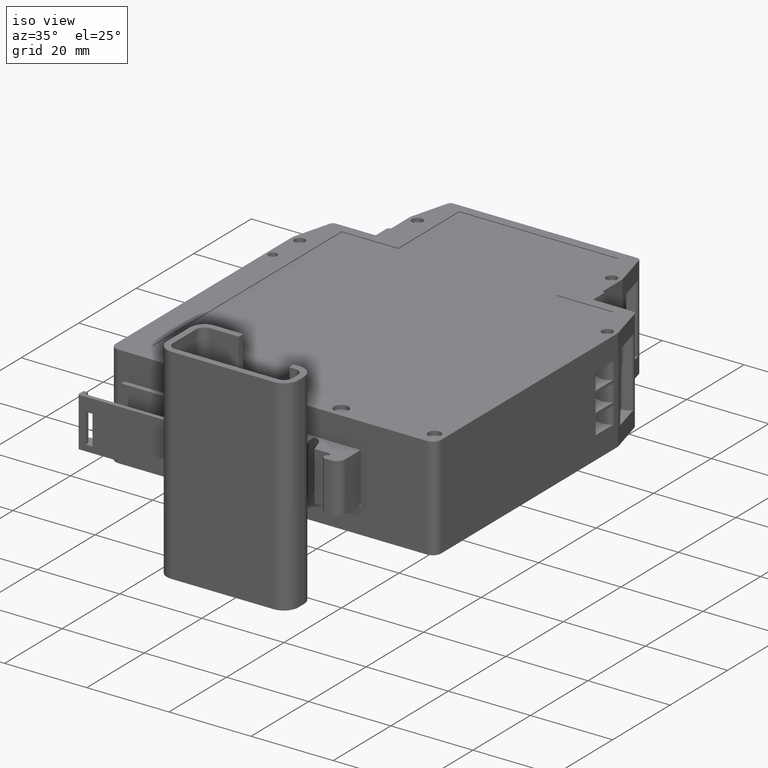
[diagram: clean part render]
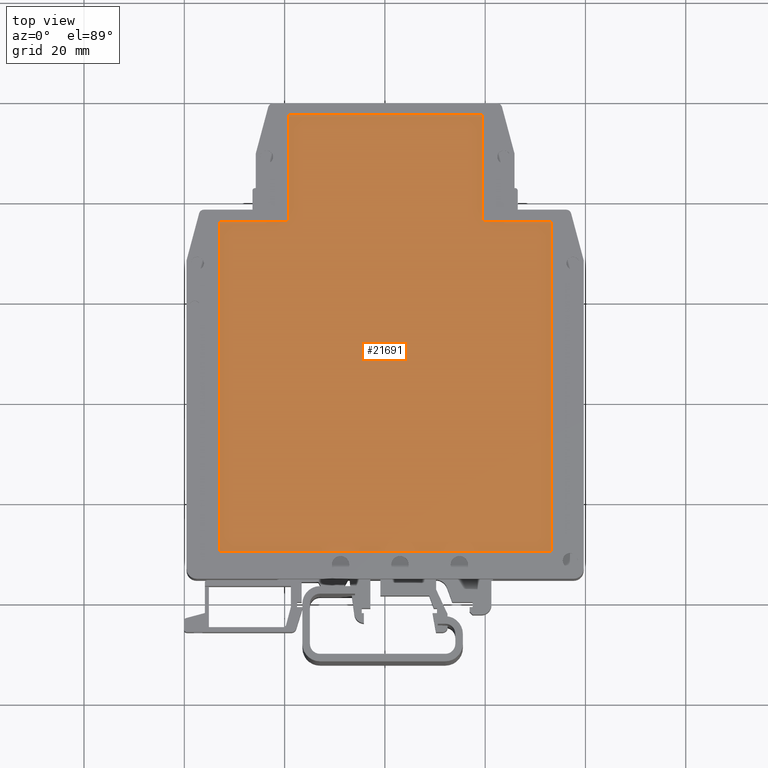
[diagram: tour spotlight — one face highlighted and labeled with its STEP entity id]
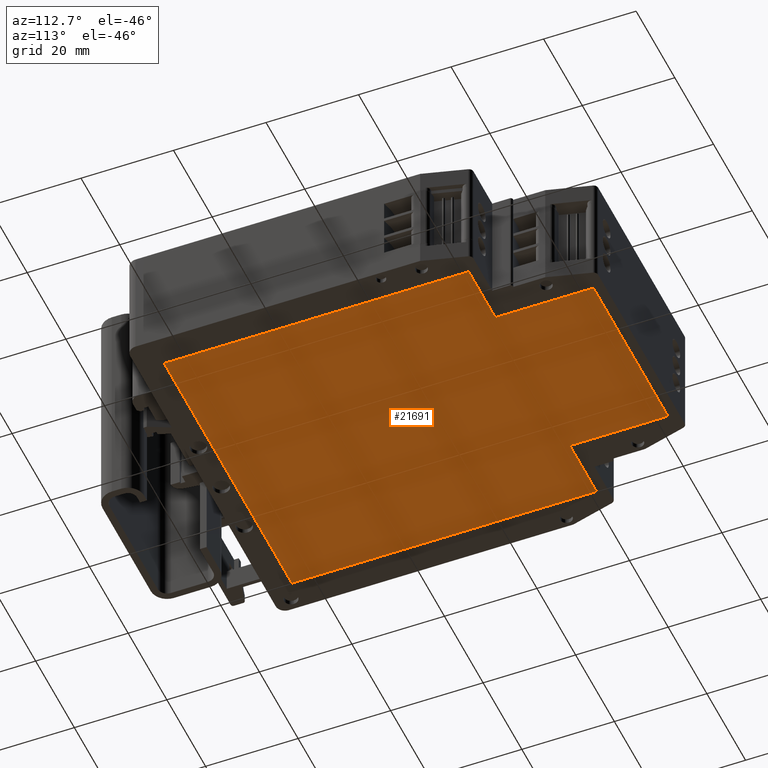
[diagram: tour spotlight — one face highlighted and labeled with its STEP entity id]
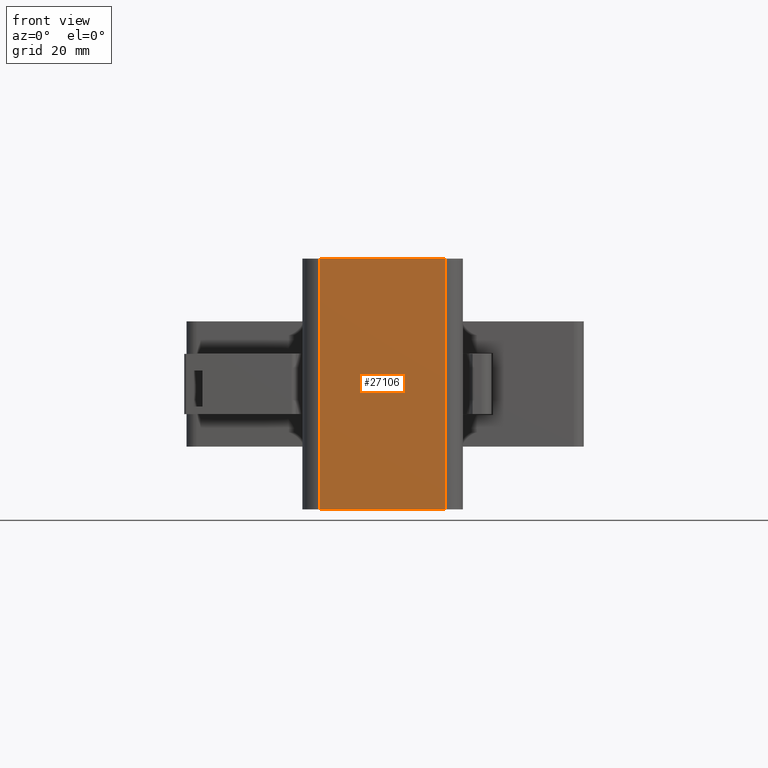
[diagram: tour spotlight — one face highlighted and labeled with its STEP entity id]
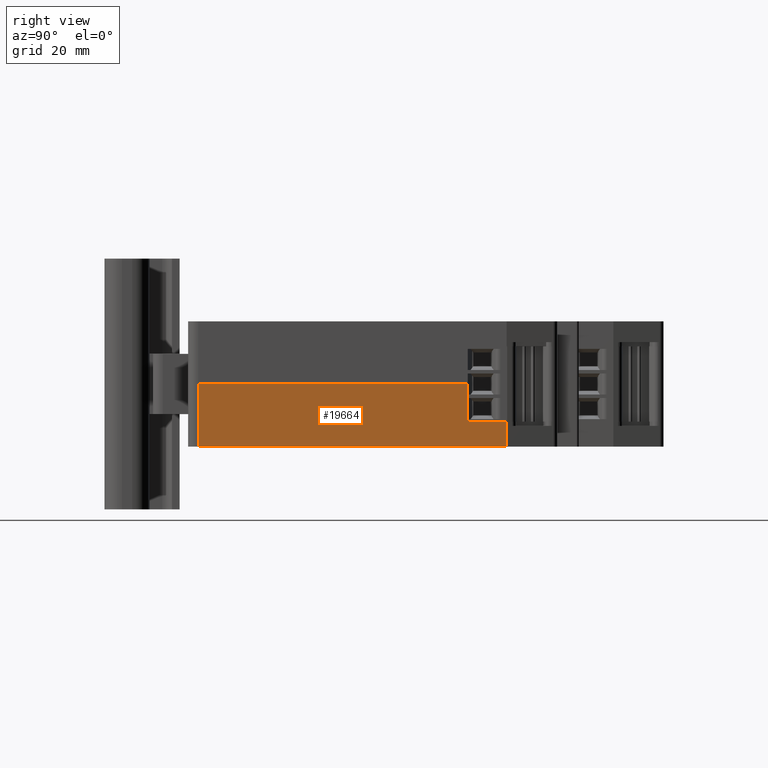
[diagram: tour spotlight — one face highlighted and labeled with its STEP entity id]
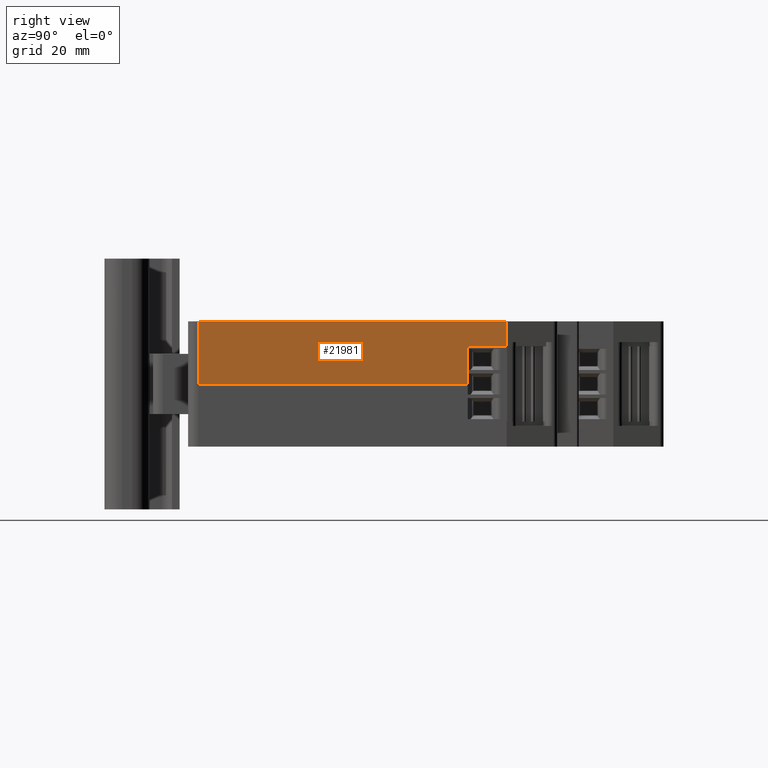
[diagram: tour spotlight — one face highlighted and labeled with its STEP entity id]
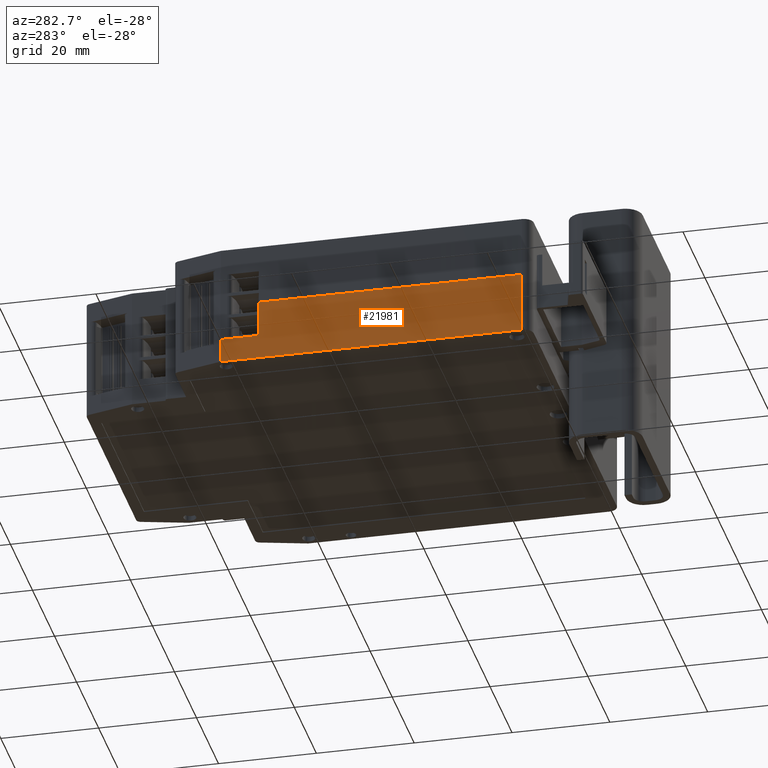
[diagram: tour spotlight — one face highlighted and labeled with its STEP entity id]
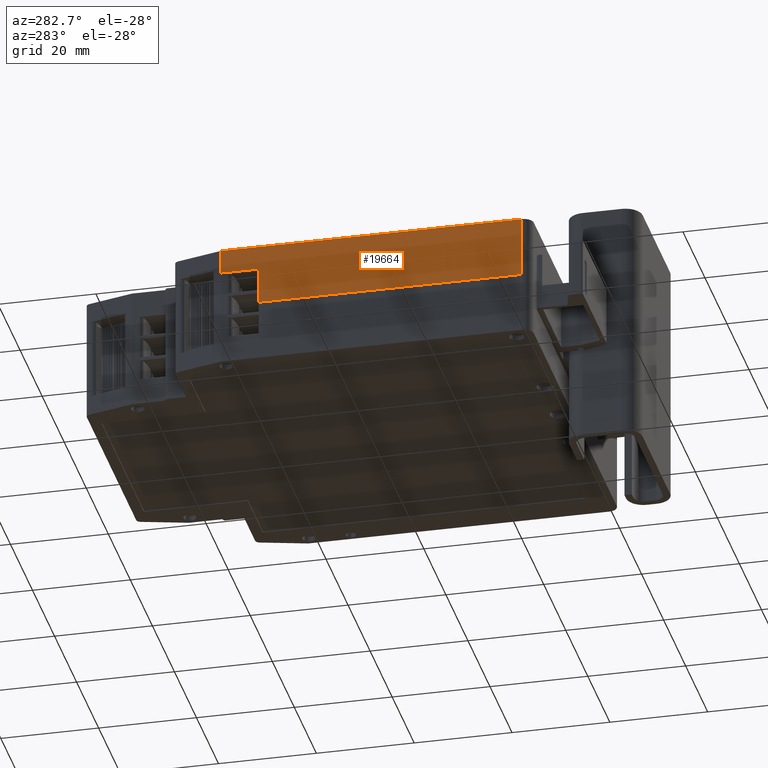
[diagram: tour spotlight — one face highlighted and labeled with its STEP entity id]
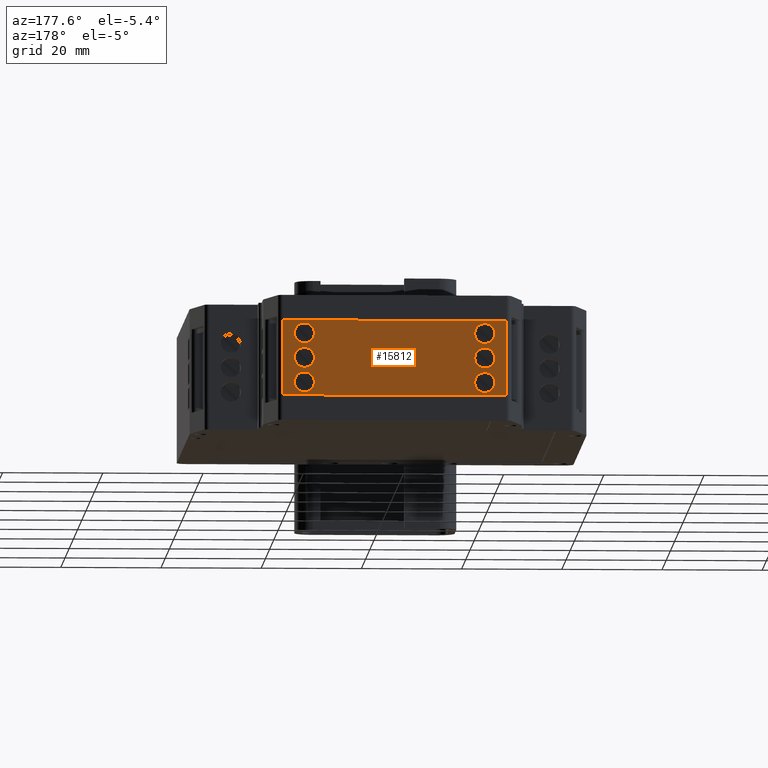
[diagram: tour spotlight — one face highlighted and labeled with its STEP entity id]
A machine part: a face-by-face anatomy tour. The part has 1025 B-rep faces; the first image is the clean iso view, then the 8 largest visible faces are spotlighted one at a time (largest first), each with its STEP entity span.

Face 1 — top view, entity #21691. In plain terms, the highlighted planar face has unit normal (0, 0, -1).
Definition (entity closure, byte-faithful):
#19452=CARTESIAN_POINT('',(-260.856197940505980,200.222192974813030,0.169999999999999));
#19453=VERTEX_POINT('',#19452);
#19460=CARTESIAN_POINT('',(-274.631197921554020,200.222192974813030,0.169999999999999));
#19461=VERTEX_POINT('',#19460);
#19462=CARTESIAN_POINT('',(-274.631197921554020,200.222192974813030,0.169999999999999));
#19463=DIRECTION('',(1.0,0.0,0.0));
#19464=VECTOR('',#19463,13.774999981048040);
#19465=LINE('',#19462,#19464);
#19466=EDGE_CURVE('',#19461,#19453,#19465,.T.);
#20030=CARTESIAN_POINT('',(-222.206197940506000,221.422192974813020,0.169999999999999));
#20031=VERTEX_POINT('',#20030);
#20038=CARTESIAN_POINT('',(-260.856197940505980,221.422192974813020,0.169999999999999));
#20039=VERTEX_POINT('',#20038);
#20040=CARTESIAN_POINT('',(-260.856197940505980,221.422192974813020,0.169999999999999));
#20041=DIRECTION('',(1.0,0.0,0.0));
#20042=VECTOR('',#20041,38.649999999999977);
#20043=LINE('',#20040,#20042);
#20044=EDGE_CURVE('',#20039,#20031,#20043,.T.);
#20999=CARTESIAN_POINT('',(-222.206197940506000,200.222192974813030,0.169999999999999));
#21000=VERTEX_POINT('',#20999);
#21007=CARTESIAN_POINT('',(-222.206197940506000,221.422192974813020,0.169999999999999));
#21008=DIRECTION('',(0.0,-1.0,0.0));
#21009=VECTOR('',#21008,21.199999999999989);
#21010=LINE('',#21007,#21009);
#21011=EDGE_CURVE('',#20031,#21000,#21010,.T.);
#21198=CARTESIAN_POINT('',(-208.431197921554030,134.322192974813020,0.169999999999999));
#21199=VERTEX_POINT('',#21198);
#21206=CARTESIAN_POINT('',(-208.431197921554030,200.222192974813030,0.169999999999999));
#21207=VERTEX_POINT('',#21206);
#21208=CARTESIAN_POINT('',(-208.431197921554030,200.222192974813030,0.169999999999999));
#21209=DIRECTION('',(0.0,-1.0,0.0));
#21210=VECTOR('',#21209,65.900000000000006);
#21211=LINE('',#21208,#21210);
#21212=EDGE_CURVE('',#21207,#21199,#21211,.T.);
#21573=CARTESIAN_POINT('',(-222.206197940506000,200.222192974813030,0.169999999999999));
#21574=DIRECTION('',(1.0,0.0,0.0));
#21575=VECTOR('',#21574,13.775000018951971);
#21576=LINE('',#21573,#21575);
#21577=EDGE_CURVE('',#21000,#21207,#21576,.T.);
#21630=CARTESIAN_POINT('',(-274.631197921554020,134.322192974813020,0.169999999999999));
#21631=VERTEX_POINT('',#21630);
#21638=CARTESIAN_POINT('',(-208.431197921554030,134.322192974813020,0.169999999999999));
#21639=DIRECTION('',(-1.0,0.0,0.0));
#21640=VECTOR('',#21639,66.199999999999989);
#21641=LINE('',#21638,#21640);
#21642=EDGE_CURVE('',#21199,#21631,#21641,.T.);
#21666=CARTESIAN_POINT('',(-330.681197921553970,128.922192974813020,0.169999999999999));
#21667=DIRECTION('',(0.0,0.0,1.0));
#21668=DIRECTION('',(1.0,0.0,0.0));
#21669=AXIS2_PLACEMENT_3D('',#21666,#21667,#21668);
#21670=PLANE('',#21669);
#21671=ORIENTED_EDGE('',*,*,#20044,.T.);
#21672=ORIENTED_EDGE('',*,*,#21011,.T.);
#21673=ORIENTED_EDGE('',*,*,#21577,.T.);
#21674=ORIENTED_EDGE('',*,*,#21212,.T.);
#21675=ORIENTED_EDGE('',*,*,#21642,.T.);
#21676=CARTESIAN_POINT('',(-274.631197921554020,134.322192974813020,0.169999999999999));
#21677=DIRECTION('',(0.0,1.0,0.0));
#21678=VECTOR('',#21677,65.900000000000006);
#21679=LINE('',#21676,#21678);
#21680=EDGE_CURVE('',#21631,#19461,#21679,.T.);
#21681=ORIENTED_EDGE('',*,*,#21680,.T.);
#21682=ORIENTED_EDGE('',*,*,#19466,.T.);
#21683=CARTESIAN_POINT('',(-260.856197940505980,200.222192974813030,0.169999999999999));
#21684=DIRECTION('',(0.0,1.0,0.0));
#21685=VECTOR('',#21684,21.199999999999989);
#21686=LINE('',#21683,#21685);
#21687=EDGE_CURVE('',#19453,#20039,#21686,.T.);
#21688=ORIENTED_EDGE('',*,*,#21687,.T.);
#21689=EDGE_LOOP('',(#21671,#21672,#21673,#21674,#21675,#21681,#21682,#21688));
#21690=FACE_OUTER_BOUND('',#21689,.T.);
#21691=ADVANCED_FACE('',(#21690),#21670,.F.);

Face 2 — auxiliary view, entity #21691. In plain terms, the highlighted planar face has unit normal (0, 0, 1).
Definition (entity closure, byte-faithful):
#19452=CARTESIAN_POINT('',(-260.856197940505980,200.222192974813030,0.169999999999999));
#19453=VERTEX_POINT('',#19452);
#19460=CARTESIAN_POINT('',(-274.631197921554020,200.222192974813030,0.169999999999999));
#19461=VERTEX_POINT('',#19460);
#19462=CARTESIAN_POINT('',(-274.631197921554020,200.222192974813030,0.169999999999999));
#19463=DIRECTION('',(1.0,0.0,0.0));
#19464=VECTOR('',#19463,13.774999981048040);
#19465=LINE('',#19462,#19464);
#19466=EDGE_CURVE('',#19461,#19453,#19465,.T.);
#20030=CARTESIAN_POINT('',(-222.206197940506000,221.422192974813020,0.169999999999999));
#20031=VERTEX_POINT('',#20030);
#20038=CARTESIAN_POINT('',(-260.856197940505980,221.422192974813020,0.169999999999999));
#20039=VERTEX_POINT('',#20038);
#20040=CARTESIAN_POINT('',(-260.856197940505980,221.422192974813020,0.169999999999999));
#20041=DIRECTION('',(1.0,0.0,0.0));
#20042=VECTOR('',#20041,38.649999999999977);
#20043=LINE('',#20040,#20042);
#20044=EDGE_CURVE('',#20039,#20031,#20043,.T.);
#20999=CARTESIAN_POINT('',(-222.206197940506000,200.222192974813030,0.169999999999999));
#21000=VERTEX_POINT('',#20999);
#21007=CARTESIAN_POINT('',(-222.206197940506000,221.422192974813020,0.169999999999999));
#21008=DIRECTION('',(0.0,-1.0,0.0));
#21009=VECTOR('',#21008,21.199999999999989);
#21010=LINE('',#21007,#21009);
#21011=EDGE_CURVE('',#20031,#21000,#21010,.T.);
#21198=CARTESIAN_POINT('',(-208.431197921554030,134.322192974813020,0.169999999999999));
#21199=VERTEX_POINT('',#21198);
#21206=CARTESIAN_POINT('',(-208.431197921554030,200.222192974813030,0.169999999999999));
#21207=VERTEX_POINT('',#21206);
#21208=CARTESIAN_POINT('',(-208.431197921554030,200.222192974813030,0.169999999999999));
#21209=DIRECTION('',(0.0,-1.0,0.0));
#21210=VECTOR('',#21209,65.900000000000006);
#21211=LINE('',#21208,#21210);
#21212=EDGE_CURVE('',#21207,#21199,#21211,.T.);
#21573=CARTESIAN_POINT('',(-222.206197940506000,200.222192974813030,0.169999999999999));
#21574=DIRECTION('',(1.0,0.0,0.0));
#21575=VECTOR('',#21574,13.775000018951971);
#21576=LINE('',#21573,#21575);
#21577=EDGE_CURVE('',#21000,#21207,#21576,.T.);
#21630=CARTESIAN_POINT('',(-274.631197921554020,134.322192974813020,0.169999999999999));
#21631=VERTEX_POINT('',#21630);
#21638=CARTESIAN_POINT('',(-208.431197921554030,134.322192974813020,0.169999999999999));
#21639=DIRECTION('',(-1.0,0.0,0.0));
#21640=VECTOR('',#21639,66.199999999999989);
#21641=LINE('',#21638,#21640);
#21642=EDGE_CURVE('',#21199,#21631,#21641,.T.);
#21666=CARTESIAN_POINT('',(-330.681197921553970,128.922192974813020,0.169999999999999));
#21667=DIRECTION('',(0.0,0.0,1.0));
#21668=DIRECTION('',(1.0,0.0,0.0));
#21669=AXIS2_PLACEMENT_3D('',#21666,#21667,#21668);
#21670=PLANE('',#21669);
#21671=ORIENTED_EDGE('',*,*,#20044,.T.);
#21672=ORIENTED_EDGE('',*,*,#21011,.T.);
#21673=ORIENTED_EDGE('',*,*,#21577,.T.);
#21674=ORIENTED_EDGE('',*,*,#21212,.T.);
#21675=ORIENTED_EDGE('',*,*,#21642,.T.);
#21676=CARTESIAN_POINT('',(-274.631197921554020,134.322192974813020,0.169999999999999));
#21677=DIRECTION('',(0.0,1.0,0.0));
#21678=VECTOR('',#21677,65.900000000000006);
#21679=LINE('',#21676,#21678);
#21680=EDGE_CURVE('',#21631,#19461,#21679,.T.);
#21681=ORIENTED_EDGE('',*,*,#21680,.T.);
#21682=ORIENTED_EDGE('',*,*,#19466,.T.);
#21683=CARTESIAN_POINT('',(-260.856197940505980,200.222192974813030,0.169999999999999));
#21684=DIRECTION('',(0.0,1.0,0.0));
#21685=VECTOR('',#21684,21.199999999999989);
#21686=LINE('',#21683,#21685);
#21687=EDGE_CURVE('',#19453,#20039,#21686,.T.);
#21688=ORIENTED_EDGE('',*,*,#21687,.T.);
#21689=EDGE_LOOP('',(#21671,#21672,#21673,#21674,#21675,#21681,#21682,#21688));
#21690=FACE_OUTER_BOUND('',#21689,.T.);
#21691=ADVANCED_FACE('',(#21690),#21670,.F.);

Face 3 — front view, entity #27106. In plain terms, the highlighted planar face has unit normal (0, -1, 0).
Definition (entity closure, byte-faithful):
#27048=CARTESIAN_POINT('',(14.250000000000000,-7.499999999999996,25.0));
#27049=VERTEX_POINT('',#27048);
#27057=CARTESIAN_POINT('',(14.250000000000000,-7.499999999999996,-25.0));
#27058=VERTEX_POINT('',#27057);
#27059=CARTESIAN_POINT('',(14.250000000000000,-7.499999999999996,-25.0));
#27060=DIRECTION('',(0.0,0.0,1.0));
#27061=VECTOR('',#27060,50.0);
#27062=LINE('',#27059,#27061);
#27063=EDGE_CURVE('',#27058,#27049,#27062,.T.);
#27076=CARTESIAN_POINT('',(14.250000000000000,-7.499999999999996,-25.0));
#27077=DIRECTION('',(0.0,-1.0,0.0));
#27078=DIRECTION('',(0.0,0.0,-1.0));
#27079=AXIS2_PLACEMENT_3D('',#27076,#27077,#27078);
#27080=PLANE('',#27079);
#27081=CARTESIAN_POINT('',(-10.750000000000000,-7.499999999999993,25.0));
#27082=VERTEX_POINT('',#27081);
#27083=CARTESIAN_POINT('',(14.250000000000000,-7.499999999999996,25.0));
#27084=DIRECTION('',(-1.0,0.0,0.0));
#27085=VECTOR('',#27084,25.0);
#27086=LINE('',#27083,#27085);
#27087=EDGE_CURVE('',#27049,#27082,#27086,.T.);
#27088=ORIENTED_EDGE('',*,*,#27087,.T.);
#27089=CARTESIAN_POINT('',(-10.750000000000000,-7.499999999999993,-25.0));
#27090=VERTEX_POINT('',#27089);
#27091=CARTESIAN_POINT('',(-10.750000000000000,-7.499999999999993,-25.0));
#27092=DIRECTION('',(0.0,0.0,1.0));
#27093=VECTOR('',#27092,50.0);
#27094=LINE('',#27091,#27093);
#27095=EDGE_CURVE('',#27090,#27082,#27094,.T.);
#27096=ORIENTED_EDGE('',*,*,#27095,.F.);
#27097=CARTESIAN_POINT('',(14.250000000000000,-7.499999999999996,-25.0));
#27098=DIRECTION('',(-1.0,0.0,0.0));
#27099=VECTOR('',#27098,25.0);
#27100=LINE('',#27097,#27099);
#27101=EDGE_CURVE('',#27058,#27090,#27100,.T.);
#27102=ORIENTED_EDGE('',*,*,#27101,.F.);
#27103=ORIENTED_EDGE('',*,*,#27063,.T.);
#27104=EDGE_LOOP('',(#27088,#27096,#27102,#27103));
#27105=FACE_OUTER_BOUND('',#27104,.T.);
#27106=ADVANCED_FACE('',(#27105),#27080,.T.);

Face 4 — right view, entity #19664. In plain terms, the highlighted planar face has unit normal (1, 0, 0).
Definition (entity closure, byte-faithful):
#19609=CARTESIAN_POINT('',(-201.931197921554000,195.504226641113490,13.095000000000001));
#19610=DIRECTION('',(1.0,0.0,0.0));
#19611=DIRECTION('',(0.0,0.0,-1.0));
#19612=AXIS2_PLACEMENT_3D('',#19609,#19610,#19611);
#19613=PLANE('',#19612);
#19614=CARTESIAN_POINT('',(-201.931197921554000,130.922192974813020,-0.030000000000001));
#19615=VERTEX_POINT('',#19614);
#19616=CARTESIAN_POINT('',(-201.931197921554000,130.922192974813020,12.470000000000001));
#19617=VERTEX_POINT('',#19616);
#19618=CARTESIAN_POINT('',(-201.931197921554000,130.922192974813020,-0.030000000000001));
#19619=DIRECTION('',(0.0,0.0,1.0));
#19620=VECTOR('',#19619,12.500000000000002);
#19621=LINE('',#19618,#19620);
#19622=EDGE_CURVE('',#19615,#19617,#19621,.T.);
#19623=ORIENTED_EDGE('',*,*,#19622,.F.);
#19624=CARTESIAN_POINT('',(-201.931197921554000,192.428891704623000,-0.030000000000001));
#19625=VERTEX_POINT('',#19624);
#19626=CARTESIAN_POINT('',(-201.931197921554000,192.428891704623000,-0.030000000000001));
#19627=DIRECTION('',(0.0,-1.0,0.0));
#19628=VECTOR('',#19627,61.506698729809983);
#19629=LINE('',#19626,#19628);
#19630=EDGE_CURVE('',#19625,#19615,#19629,.T.);
#19631=ORIENTED_EDGE('',*,*,#19630,.F.);
#19632=CARTESIAN_POINT('',(-201.931197921554000,192.428891704623000,4.970000000000000));
#19633=VERTEX_POINT('',#19632);
#19634=CARTESIAN_POINT('',(-201.931197921554000,192.428891704623000,4.970000000000000));
#19635=DIRECTION('',(0.0,0.0,-1.0));
#19636=VECTOR('',#19635,5.000000000000001);
#19637=LINE('',#19634,#19636);
#19638=EDGE_CURVE('',#19633,#19625,#19637,.T.);
#19639=ORIENTED_EDGE('',*,*,#19638,.F.);
#19640=CARTESIAN_POINT('',(-201.931197921554000,184.665494245002010,4.970000000000000));
#19641=VERTEX_POINT('',#19640);
#19642=CARTESIAN_POINT('',(-201.931197921554000,192.428891704623000,4.970000000000000));
#19643=DIRECTION('',(0.0,-1.0,0.0));
#19644=VECTOR('',#19643,7.763397459620990);
#19645=LINE('',#19642,#19644);
#19646=EDGE_CURVE('',#19633,#19641,#19645,.T.);
#19647=ORIENTED_EDGE('',*,*,#19646,.T.);
#19648=CARTESIAN_POINT('',(-201.931197921554000,184.665494245002010,12.470000000000001));
#19649=VERTEX_POINT('',#19648);
#19650=CARTESIAN_POINT('',(-201.931197921554000,184.665494245002010,4.970000000000000));
#19651=DIRECTION('',(0.0,0.0,1.0));
#19652=VECTOR('',#19651,7.500000000000001);
#19653=LINE('',#19650,#19652);
#19654=EDGE_CURVE('',#19641,#19649,#19653,.T.);
#19655=ORIENTED_EDGE('',*,*,#19654,.T.);
#19656=CARTESIAN_POINT('',(-201.931197921554000,184.665494245002010,12.470000000000001));
#19657=DIRECTION('',(0.0,-1.0,0.0));
#19658=VECTOR('',#19657,53.743301270188994);
#19659=LINE('',#19656,#19658);
#19660=EDGE_CURVE('',#19649,#19617,#19659,.T.);
#19661=ORIENTED_EDGE('',*,*,#19660,.T.);
#19662=EDGE_LOOP('',(#19623,#19631,#19639,#19647,#19655,#19661));
#19663=FACE_OUTER_BOUND('',#19662,.T.);
#19664=ADVANCED_FACE('',(#19663),#19613,.T.);

Face 5 — right view, entity #21981. In plain terms, the highlighted planar face has unit normal (1, 0, 0).
Definition (entity closure, byte-faithful):
#20614=CARTESIAN_POINT('',(-281.131197921554020,130.922192974813020,-0.030000000000001));
#20615=VERTEX_POINT('',#20614);
#20623=CARTESIAN_POINT('',(-281.131197921554020,192.428891704623000,-0.030000000000001));
#20624=VERTEX_POINT('',#20623);
#20625=CARTESIAN_POINT('',(-281.131197921554020,130.922192974813020,-0.030000000000001));
#20626=DIRECTION('',(0.0,1.0,0.0));
#20627=VECTOR('',#20626,61.506698729809983);
#20628=LINE('',#20625,#20627);
#20629=EDGE_CURVE('',#20615,#20624,#20628,.T.);
#20863=CARTESIAN_POINT('',(-281.131197921554020,192.428891704623000,4.970000000000000));
#20864=VERTEX_POINT('',#20863);
#20865=CARTESIAN_POINT('',(-281.131197921554020,192.428891704623000,-0.030000000000001));
#20866=DIRECTION('',(0.0,0.0,1.0));
#20867=VECTOR('',#20866,5.000000000000001);
#20868=LINE('',#20865,#20867);
#20869=EDGE_CURVE('',#20624,#20864,#20868,.T.);
#21942=CARTESIAN_POINT('',(-281.131197921554020,127.846858038322520,13.095000000000001));
#21943=DIRECTION('',(-1.0,0.0,0.0));
#21944=DIRECTION('',(0.0,0.0,1.0));
#21945=AXIS2_PLACEMENT_3D('',#21942,#21943,#21944);
#21946=PLANE('',#21945);
#21947=CARTESIAN_POINT('',(-281.131197921554020,184.665494245002010,12.470000000000001));
#21948=VERTEX_POINT('',#21947);
#21949=CARTESIAN_POINT('',(-281.131197921554020,130.922192974813020,12.470000000000001));
#21950=VERTEX_POINT('',#21949);
#21951=CARTESIAN_POINT('',(-281.131197921554020,184.665494245002010,12.470000000000001));
#21952=DIRECTION('',(0.0,-1.0,0.0));
#21953=VECTOR('',#21952,53.743301270188994);
#21954=LINE('',#21951,#21953);
#21955=EDGE_CURVE('',#21948,#21950,#21954,.T.);
#21956=ORIENTED_EDGE('',*,*,#21955,.F.);
#21957=CARTESIAN_POINT('',(-281.131197921554020,184.665494245002010,4.970000000000000));
#21958=VERTEX_POINT('',#21957);
#21959=CARTESIAN_POINT('',(-281.131197921554020,184.665494245002010,12.470000000000001));
#21960=DIRECTION('',(0.0,0.0,-1.0));
#21961=VECTOR('',#21960,7.500000000000001);
#21962=LINE('',#21959,#21961);
#21963=EDGE_CURVE('',#21948,#21958,#21962,.T.);
#21964=ORIENTED_EDGE('',*,*,#21963,.T.);
#21965=CARTESIAN_POINT('',(-281.131197921554020,184.665494245002010,4.970000000000000));
#21966=DIRECTION('',(0.0,1.0,0.0));
#21967=VECTOR('',#21966,7.763397459620990);
#21968=LINE('',#21965,#21967);
#21969=EDGE_CURVE('',#21958,#20864,#21968,.T.);
#21970=ORIENTED_EDGE('',*,*,#21969,.T.);
#21971=ORIENTED_EDGE('',*,*,#20869,.F.);
#21972=ORIENTED_EDGE('',*,*,#20629,.F.);
#21973=CARTESIAN_POINT('',(-281.131197921554020,130.922192974813020,-0.030000000000001));
#21974=DIRECTION('',(0.0,0.0,1.0));
#21975=VECTOR('',#21974,12.500000000000002);
#21976=LINE('',#21973,#21975);
#21977=EDGE_CURVE('',#20615,#21950,#21976,.T.);
#21978=ORIENTED_EDGE('',*,*,#21977,.T.);
#21979=EDGE_LOOP('',(#21956,#21964,#21970,#21971,#21972,#21978));
#21980=FACE_OUTER_BOUND('',#21979,.T.);
#21981=ADVANCED_FACE('',(#21980),#21946,.T.);

Face 6 — auxiliary view, entity #21981. In plain terms, the highlighted planar face has unit normal (-1, 0, 0).
Definition (entity closure, byte-faithful):
#20614=CARTESIAN_POINT('',(-281.131197921554020,130.922192974813020,-0.030000000000001));
#20615=VERTEX_POINT('',#20614);
#20623=CARTESIAN_POINT('',(-281.131197921554020,192.428891704623000,-0.030000000000001));
#20624=VERTEX_POINT('',#20623);
#20625=CARTESIAN_POINT('',(-281.131197921554020,130.922192974813020,-0.030000000000001));
#20626=DIRECTION('',(0.0,1.0,0.0));
#20627=VECTOR('',#20626,61.506698729809983);
#20628=LINE('',#20625,#20627);
#20629=EDGE_CURVE('',#20615,#20624,#20628,.T.);
#20863=CARTESIAN_POINT('',(-281.131197921554020,192.428891704623000,4.970000000000000));
#20864=VERTEX_POINT('',#20863);
#20865=CARTESIAN_POINT('',(-281.131197921554020,192.428891704623000,-0.030000000000001));
#20866=DIRECTION('',(0.0,0.0,1.0));
#20867=VECTOR('',#20866,5.000000000000001);
#20868=LINE('',#20865,#20867);
#20869=EDGE_CURVE('',#20624,#20864,#20868,.T.);
#21942=CARTESIAN_POINT('',(-281.131197921554020,127.846858038322520,13.095000000000001));
#21943=DIRECTION('',(-1.0,0.0,0.0));
#21944=DIRECTION('',(0.0,0.0,1.0));
#21945=AXIS2_PLACEMENT_3D('',#21942,#21943,#21944);
#21946=PLANE('',#21945);
#21947=CARTESIAN_POINT('',(-281.131197921554020,184.665494245002010,12.470000000000001));
#21948=VERTEX_POINT('',#21947);
#21949=CARTESIAN_POINT('',(-281.131197921554020,130.922192974813020,12.470000000000001));
#21950=VERTEX_POINT('',#21949);
#21951=CARTESIAN_POINT('',(-281.131197921554020,184.665494245002010,12.470000000000001));
#21952=DIRECTION('',(0.0,-1.0,0.0));
#21953=VECTOR('',#21952,53.743301270188994);
#21954=LINE('',#21951,#21953);
#21955=EDGE_CURVE('',#21948,#21950,#21954,.T.);
#21956=ORIENTED_EDGE('',*,*,#21955,.F.);
#21957=CARTESIAN_POINT('',(-281.131197921554020,184.665494245002010,4.970000000000000));
#21958=VERTEX_POINT('',#21957);
#21959=CARTESIAN_POINT('',(-281.131197921554020,184.665494245002010,12.470000000000001));
#21960=DIRECTION('',(0.0,0.0,-1.0));
#21961=VECTOR('',#21960,7.500000000000001);
#21962=LINE('',#21959,#21961);
#21963=EDGE_CURVE('',#21948,#21958,#21962,.T.);
#21964=ORIENTED_EDGE('',*,*,#21963,.T.);
#21965=CARTESIAN_POINT('',(-281.131197921554020,184.665494245002010,4.970000000000000));
#21966=DIRECTION('',(0.0,1.0,0.0));
#21967=VECTOR('',#21966,7.763397459620990);
#21968=LINE('',#21965,#21967);
#21969=EDGE_CURVE('',#21958,#20864,#21968,.T.);
#21970=ORIENTED_EDGE('',*,*,#21969,.T.);
#21971=ORIENTED_EDGE('',*,*,#20869,.F.);
#21972=ORIENTED_EDGE('',*,*,#20629,.F.);
#21973=CARTESIAN_POINT('',(-281.131197921554020,130.922192974813020,-0.030000000000001));
#21974=DIRECTION('',(0.0,0.0,1.0));
#21975=VECTOR('',#21974,12.500000000000002);
#21976=LINE('',#21973,#21975);
#21977=EDGE_CURVE('',#20615,#21950,#21976,.T.);
#21978=ORIENTED_EDGE('',*,*,#21977,.T.);
#21979=EDGE_LOOP('',(#21956,#21964,#21970,#21971,#21972,#21978));
#21980=FACE_OUTER_BOUND('',#21979,.T.);
#21981=ADVANCED_FACE('',(#21980),#21946,.T.);

Face 7 — auxiliary view, entity #19664. In plain terms, the highlighted planar face has unit normal (-1, 0, 0).
Definition (entity closure, byte-faithful):
#19609=CARTESIAN_POINT('',(-201.931197921554000,195.504226641113490,13.095000000000001));
#19610=DIRECTION('',(1.0,0.0,0.0));
#19611=DIRECTION('',(0.0,0.0,-1.0));
#19612=AXIS2_PLACEMENT_3D('',#19609,#19610,#19611);
#19613=PLANE('',#19612);
#19614=CARTESIAN_POINT('',(-201.931197921554000,130.922192974813020,-0.030000000000001));
#19615=VERTEX_POINT('',#19614);
#19616=CARTESIAN_POINT('',(-201.931197921554000,130.922192974813020,12.470000000000001));
#19617=VERTEX_POINT('',#19616);
#19618=CARTESIAN_POINT('',(-201.931197921554000,130.922192974813020,-0.030000000000001));
#19619=DIRECTION('',(0.0,0.0,1.0));
#19620=VECTOR('',#19619,12.500000000000002);
#19621=LINE('',#19618,#19620);
#19622=EDGE_CURVE('',#19615,#19617,#19621,.T.);
#19623=ORIENTED_EDGE('',*,*,#19622,.F.);
#19624=CARTESIAN_POINT('',(-201.931197921554000,192.428891704623000,-0.030000000000001));
#19625=VERTEX_POINT('',#19624);
#19626=CARTESIAN_POINT('',(-201.931197921554000,192.428891704623000,-0.030000000000001));
#19627=DIRECTION('',(0.0,-1.0,0.0));
#19628=VECTOR('',#19627,61.506698729809983);
#19629=LINE('',#19626,#19628);
#19630=EDGE_CURVE('',#19625,#19615,#19629,.T.);
#19631=ORIENTED_EDGE('',*,*,#19630,.F.);
#19632=CARTESIAN_POINT('',(-201.931197921554000,192.428891704623000,4.970000000000000));
#19633=VERTEX_POINT('',#19632);
#19634=CARTESIAN_POINT('',(-201.931197921554000,192.428891704623000,4.970000000000000));
#19635=DIRECTION('',(0.0,0.0,-1.0));
#19636=VECTOR('',#19635,5.000000000000001);
#19637=LINE('',#19634,#19636);
#19638=EDGE_CURVE('',#19633,#19625,#19637,.T.);
#19639=ORIENTED_EDGE('',*,*,#19638,.F.);
#19640=CARTESIAN_POINT('',(-201.931197921554000,184.665494245002010,4.970000000000000));
#19641=VERTEX_POINT('',#19640);
#19642=CARTESIAN_POINT('',(-201.931197921554000,192.428891704623000,4.970000000000000));
#19643=DIRECTION('',(0.0,-1.0,0.0));
#19644=VECTOR('',#19643,7.763397459620990);
#19645=LINE('',#19642,#19644);
#19646=EDGE_CURVE('',#19633,#19641,#19645,.T.);
#19647=ORIENTED_EDGE('',*,*,#19646,.T.);
#19648=CARTESIAN_POINT('',(-201.931197921554000,184.665494245002010,12.470000000000001));
#19649=VERTEX_POINT('',#19648);
#19650=CARTESIAN_POINT('',(-201.931197921554000,184.665494245002010,4.970000000000000));
#19651=DIRECTION('',(0.0,0.0,1.0));
#19652=VECTOR('',#19651,7.500000000000001);
#19653=LINE('',#19650,#19652);
#19654=EDGE_CURVE('',#19641,#19649,#19653,.T.);
#19655=ORIENTED_EDGE('',*,*,#19654,.T.);
#19656=CARTESIAN_POINT('',(-201.931197921554000,184.665494245002010,12.470000000000001));
#19657=DIRECTION('',(0.0,-1.0,0.0));
#19658=VECTOR('',#19657,53.743301270188994);
#19659=LINE('',#19656,#19658);
#19660=EDGE_CURVE('',#19649,#19617,#19659,.T.);
#19661=ORIENTED_EDGE('',*,*,#19660,.T.);
#19662=EDGE_LOOP('',(#19623,#19631,#19639,#19647,#19655,#19661));
#19663=FACE_OUTER_BOUND('',#19662,.T.);
#19664=ADVANCED_FACE('',(#19663),#19613,.T.);

Face 8 — auxiliary view, entity #15812. In plain terms, the highlighted planar face has unit normal (0, 1, 0).
Definition (entity closure, byte-faithful):
#2438=CARTESIAN_POINT('',(-194.550703459847000,121.000269587342020,14.984999999999999));
#2439=VERTEX_POINT('',#2438);
#2447=CARTESIAN_POINT('',(-239.257065635267000,121.000269587342020,14.984999999999999));
#2448=VERTEX_POINT('',#2447);
#2449=CARTESIAN_POINT('',(-194.550703459847000,121.000269587342020,14.984999999999999));
#2450=DIRECTION('',(-1.0,0.0,0.0));
#2451=VECTOR('',#2450,44.706362175419997);
#2452=LINE('',#2449,#2451);
#2453=EDGE_CURVE('',#2439,#2448,#2452,.T.);
#3754=CARTESIAN_POINT('',(-239.257065635267000,121.000269587342020,-0.015000000000000));
#3755=VERTEX_POINT('',#3754);
#3763=CARTESIAN_POINT('',(-194.550703459847000,121.000269587342020,-0.015000000000000));
#3764=VERTEX_POINT('',#3763);
#3765=CARTESIAN_POINT('',(-194.550703459847000,121.000269587342020,-0.015000000000000));
#3766=DIRECTION('',(-1.0,0.0,0.0));
#3767=VECTOR('',#3766,44.706362175419997);
#3768=LINE('',#3765,#3767);
#3769=EDGE_CURVE('',#3764,#3755,#3768,.T.);
#5016=CARTESIAN_POINT('',(-194.550703459847000,121.000269587342020,-0.015000000000000));
#5017=DIRECTION('',(0.0,0.0,1.0));
#5018=VECTOR('',#5017,15.0);
#5019=LINE('',#5016,#5018);
#5020=EDGE_CURVE('',#3764,#2439,#5019,.T.);
#5040=CARTESIAN_POINT('',(-239.257065635267000,121.000269587342020,-0.015000000000000));
#5041=DIRECTION('',(0.0,0.0,1.0));
#5042=VECTOR('',#5041,15.0);
#5043=LINE('',#5040,#5042);
#5044=EDGE_CURVE('',#3755,#2448,#5043,.T.);
#9444=CARTESIAN_POINT('',(-200.906596133411990,121.000269587342020,2.585000000000000));
#9445=VERTEX_POINT('',#9444);
#9452=CARTESIAN_POINT('',(-196.906596133411990,121.000269587342020,2.585000000000000));
#9453=VERTEX_POINT('',#9452);
#9454=CARTESIAN_POINT('',(-198.906596133411990,121.000269587342020,2.585000000000000));
#9455=DIRECTION('',(0.0,1.0,0.0));
#9456=DIRECTION('',(-1.0,0.0,0.0));
#9457=AXIS2_PLACEMENT_3D('',#9454,#9455,#9456);
#9458=CIRCLE('',#9457,2.0);
#9459=EDGE_CURVE('',#9445,#9453,#9458,.T.);
#11938=CARTESIAN_POINT('',(-236.901172961701010,121.000269587342020,7.485000000000000));
#11939=VERTEX_POINT('',#11938);
#11946=CARTESIAN_POINT('',(-232.901172961701010,121.000269587342020,7.485000000000000));
#11947=VERTEX_POINT('',#11946);
#11948=CARTESIAN_POINT('',(-234.901172961701010,121.000269587342020,7.485000000000000));
#11949=DIRECTION('',(0.0,1.0,0.0));
#11950=DIRECTION('',(-1.0,0.0,0.0));
#11951=AXIS2_PLACEMENT_3D('',#11948,#11949,#11950);
#11952=CIRCLE('',#11951,2.0);
#11953=EDGE_CURVE('',#11939,#11947,#11952,.T.);
#14408=CARTESIAN_POINT('',(-200.906596133411990,121.000269587342020,7.485000000000000));
#14409=VERTEX_POINT('',#14408);
#14416=CARTESIAN_POINT('',(-196.906596133411990,121.000269587342020,7.485000000000000));
#14417=VERTEX_POINT('',#14416);
#14418=CARTESIAN_POINT('',(-198.906596133411990,121.000269587342020,7.485000000000000));
#14419=DIRECTION('',(0.0,1.0,0.0));
#14420=DIRECTION('',(-1.0,0.0,0.0));
#14421=AXIS2_PLACEMENT_3D('',#14418,#14419,#14420);
#14422=CIRCLE('',#14421,2.0);
#14423=EDGE_CURVE('',#14409,#14417,#14422,.T.);
#14655=CARTESIAN_POINT('',(-236.901172961701010,121.000269587342020,12.385000000000000));
#14656=VERTEX_POINT('',#14655);
#14663=CARTESIAN_POINT('',(-232.901172961701010,121.000269587342020,12.385000000000000));
#14664=VERTEX_POINT('',#14663);
#14665=CARTESIAN_POINT('',(-234.901172961701010,121.000269587342020,12.385000000000000));
#14666=DIRECTION('',(0.0,1.0,0.0));
#14667=DIRECTION('',(-1.0,0.0,0.0));
#14668=AXIS2_PLACEMENT_3D('',#14665,#14666,#14667);
#14669=CIRCLE('',#14668,2.0);
#14670=EDGE_CURVE('',#14656,#14664,#14669,.T.);
#14947=CARTESIAN_POINT('',(-200.906596133411990,121.000269587342020,12.385000000000000));
#14948=VERTEX_POINT('',#14947);
#14955=CARTESIAN_POINT('',(-196.906596133411990,121.000269587342020,12.385000000000000));
#14956=VERTEX_POINT('',#14955);
#14957=CARTESIAN_POINT('',(-198.906596133411990,121.000269587342020,12.385000000000000));
#14958=DIRECTION('',(0.0,1.0,0.0));
#14959=DIRECTION('',(-1.0,0.0,0.0));
#14960=AXIS2_PLACEMENT_3D('',#14957,#14958,#14959);
#14961=CIRCLE('',#14960,2.0);
#14962=EDGE_CURVE('',#14948,#14956,#14961,.T.);
#15038=CARTESIAN_POINT('',(-236.901172961701010,121.000269587342020,2.585000000000000));
#15039=VERTEX_POINT('',#15038);
#15046=CARTESIAN_POINT('',(-232.901172961701010,121.000269587342020,2.585000000000000));
#15047=VERTEX_POINT('',#15046);
#15048=CARTESIAN_POINT('',(-234.901172961701010,121.000269587342020,2.585000000000000));
#15049=DIRECTION('',(0.0,1.0,0.0));
#15050=DIRECTION('',(-1.0,0.0,0.0));
#15051=AXIS2_PLACEMENT_3D('',#15048,#15049,#15050);
#15052=CIRCLE('',#15051,2.0);
#15053=EDGE_CURVE('',#15039,#15047,#15052,.T.);
#15741=CARTESIAN_POINT('',(-192.315385351076000,121.000269587342020,-0.765000000000001));
#15742=DIRECTION('',(0.0,1.0,0.0));
#15743=DIRECTION('',(0.0,0.0,1.0));
#15744=AXIS2_PLACEMENT_3D('',#15741,#15742,#15743);
#15745=PLANE('',#15744);
#15746=ORIENTED_EDGE('',*,*,#3769,.T.);
#15747=ORIENTED_EDGE('',*,*,#5044,.T.);
#15748=ORIENTED_EDGE('',*,*,#2453,.F.);
#15749=ORIENTED_EDGE('',*,*,#5020,.F.);
#15750=EDGE_LOOP('',(#15746,#15747,#15748,#15749));
#15751=FACE_OUTER_BOUND('',#15750,.T.);
#15752=CARTESIAN_POINT('',(-234.901172961701010,121.000269587342020,7.485000000000000));
#15753=DIRECTION('',(0.0,1.0,0.0));
#15754=DIRECTION('',(-1.0,0.0,0.0));
#15755=AXIS2_PLACEMENT_3D('',#15752,#15753,#15754);
#15756=CIRCLE('',#15755,2.0);
#15757=EDGE_CURVE('',#11947,#11939,#15756,.T.);
#15758=ORIENTED_EDGE('',*,*,#15757,.F.);
#15759=ORIENTED_EDGE('',*,*,#11953,.F.);
#15760=EDGE_LOOP('',(#15758,#15759));
#15761=FACE_BOUND('',#15760,.T.);
#15762=CARTESIAN_POINT('',(-198.906596133411990,121.000269587342020,7.485000000000000));
#15763=DIRECTION('',(0.0,1.0,0.0));
#15764=DIRECTION('',(-1.0,0.0,0.0));
#15765=AXIS2_PLACEMENT_3D('',#15762,#15763,#15764);
#15766=CIRCLE('',#15765,2.0);
#15767=EDGE_CURVE('',#14417,#14409,#15766,.T.);
#15768=ORIENTED_EDGE('',*,*,#15767,.F.);
#15769=ORIENTED_EDGE('',*,*,#14423,.F.);
#15770=EDGE_LOOP('',(#15768,#15769));
#15771=FACE_BOUND('',#15770,.T.);
#15772=CARTESIAN_POINT('',(-234.901172961701010,121.000269587342020,12.385000000000000));
#15773=DIRECTION('',(0.0,1.0,0.0));
#15774=DIRECTION('',(-1.0,0.0,0.0));
#15775=AXIS2_PLACEMENT_3D('',#15772,#15773,#15774);
#15776=CIRCLE('',#15775,2.0);
#15777=EDGE_CURVE('',#14664,#14656,#15776,.T.);
#15778=ORIENTED_EDGE('',*,*,#15777,.F.);
#15779=ORIENTED_EDGE('',*,*,#14670,.F.);
#15780=EDGE_LOOP('',(#15778,#15779));
#15781=FACE_BOUND('',#15780,.T.);
#15782=CARTESIAN_POINT('',(-234.901172961701010,121.000269587342020,2.585000000000000));
#15783=DIRECTION('',(0.0,1.0,0.0));
#15784=DIRECTION('',(-1.0,0.0,0.0));
#15785=AXIS2_PLACEMENT_3D('',#15782,#15783,#15784);
#15786=CIRCLE('',#15785,2.0);
#15787=EDGE_CURVE('',#15047,#15039,#15786,.T.);
#15788=ORIENTED_EDGE('',*,*,#15787,.F.);
#15789=ORIENTED_EDGE('',*,*,#15053,.F.);
#15790=EDGE_LOOP('',(#15788,#15789));
#15791=FACE_BOUND('',#15790,.T.);
#15792=CARTESIAN_POINT('',(-198.906596133411990,121.000269587342020,2.585000000000000));
#15793=DIRECTION('',(0.0,1.0,0.0));
#15794=DIRECTION('',(-1.0,0.0,0.0));
#15795=AXIS2_PLACEMENT_3D('',#15792,#15793,#15794);
#15796=CIRCLE('',#15795,2.0);
#15797=EDGE_CURVE('',#9453,#9445,#15796,.T.);
#15798=ORIENTED_EDGE('',*,*,#15797,.F.);
#15799=ORIENTED_EDGE('',*,*,#9459,.F.);
#15800=EDGE_LOOP('',(#15798,#15799));
#15801=FACE_BOUND('',#15800,.T.);
#15802=CARTESIAN_POINT('',(-198.906596133411990,121.000269587342020,12.385000000000000));
#15803=DIRECTION('',(0.0,1.0,0.0));
#15804=DIRECTION('',(-1.0,0.0,0.0));
#15805=AXIS2_PLACEMENT_3D('',#15802,#15803,#15804);
#15806=CIRCLE('',#15805,2.0);
#15807=EDGE_CURVE('',#14956,#14948,#15806,.T.);
#15808=ORIENTED_EDGE('',*,*,#15807,.F.);
#15809=ORIENTED_EDGE('',*,*,#14962,.F.);
#15810=EDGE_LOOP('',(#15808,#15809));
#15811=FACE_BOUND('',#15810,.T.);
#15812=ADVANCED_FACE('',(#15751,#15761,#15771,#15781,#15791,#15801,#15811),#15745,.T.);